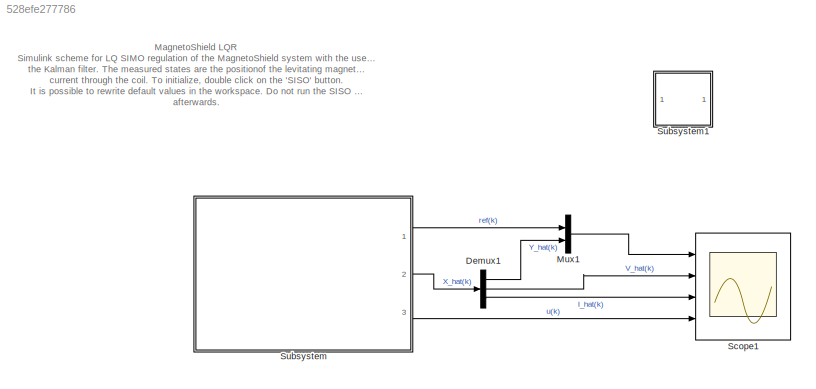
MODEL slx_528efe277786
KIND model
CONFIG AbsTol = auto
CONFIG EnableMultiTasking = on
CONFIG FixedStep = auto
CONFIG MaxStep = auto
CONFIG MinStep = auto
CONFIG RelTol = 1e-3
CONFIG SampleTimeConstraint = Unconstrained
CONFIG Solver = FixedStepAuto
CONFIG SolverName = FixedStepAuto
CONFIG StartTime = 0.0
CONFIG StopTime = 120
BLOCK [Demux] Demux1
  DisplayOption = bar
  Outputs = 3
  Ports = [1, 3]
BLOCK [Mux] Mux1
  DisplayOption = bar
  Inputs = 2
  Ports = [2, 1]
BLOCK [Scope] Scope1
  Floating = off
  NumInputPorts = 4
  Ports = [4]
  ScopeSpecificationString = Simulink.scopes.TimeScopeBlockCfg('CurrentConfiguration', extmgr.ConfigurationSet(extmgr.Configuration('Core','General UI',true),extmgr.Configuration('Core','Source UI',true),extmgr.Configuration('Sources','WiredSimulink',true,'DataLoggingVariableName','ScopeData1','DataLoggingSaveFormat','StructureWithTime'),extmgr.Configuration('Visuals','Time Domain',true,'SerializedDisplays',{struct('MinYLimRe...<+3780ch>
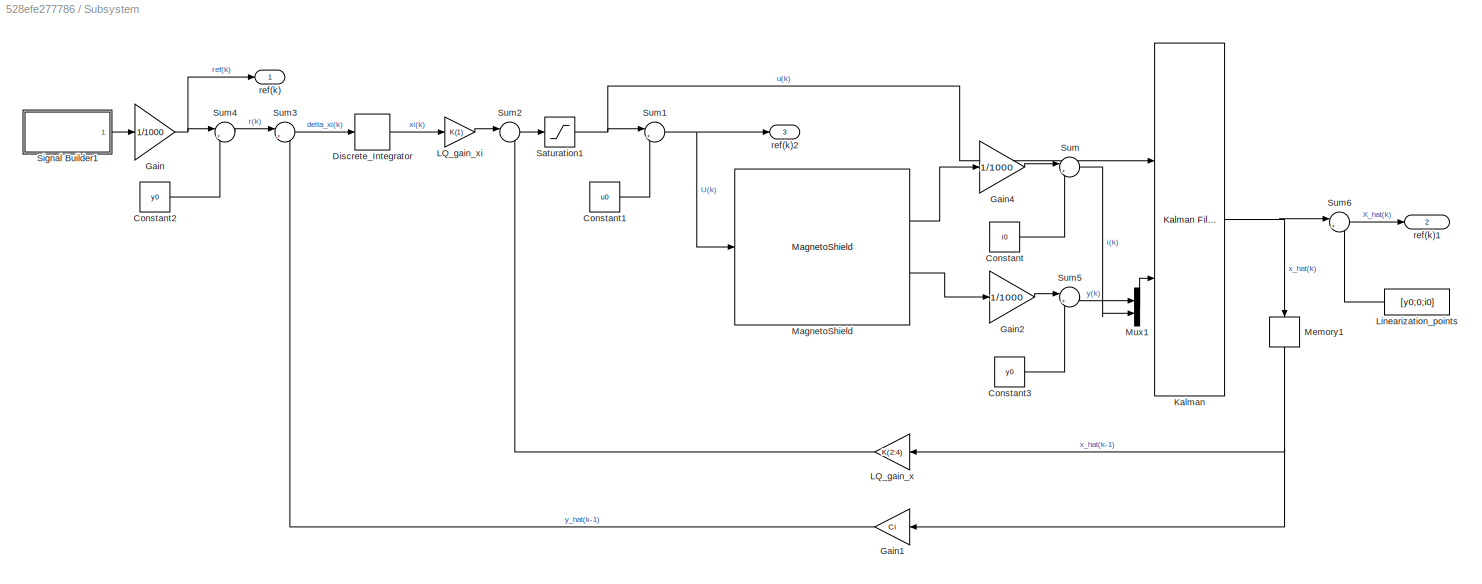
BLOCK [SubSystem] Subsystem
  Ports = [0, 3]
  RequestExecContextInheritance = off
BLOCK [Constant] Subsystem/Constant
  Value = i0
BLOCK [Constant] Subsystem/Constant1
  Value = u0
BLOCK [Constant] Subsystem/Constant2
  Value = y0
BLOCK [Constant] Subsystem/Constant3
  Value = y0
BLOCK [DiscreteIntegrator] Subsystem/Discrete_Integrator
  ICPrevOutput = DiscIntNeverNeededParam
  ICPrevScaledInput = DiscIntNeverNeededParam
  InitialConditionSetting = Auto
  IntegratorMethod = Accumulation: Forward Euler
  LimitOutput = on
  LowerSaturationLimit = -1
  Ports = [1, 1]
  SampleTime = Ts
  UpperSaturationLimit = 1
BLOCK [Gain] Subsystem/Gain
  Gain = 1/1000
  OutDataTypeStr = Inherit: Inherit via internal rule
  ParamDataTypeStr = Inherit: Inherit via internal rule
  SaturateOnIntegerOverflow = off
BLOCK [Gain] Subsystem/Gain1
  Gain = Ci
  Multiplication = Matrix(K*u)
  OutDataTypeStr = Inherit: Inherit via internal rule
  ParamDataTypeStr = Inherit: Inherit via internal rule
  SaturateOnIntegerOverflow = off
BLOCK [Gain] Subsystem/Gain2
  Gain = 1/1000
  OutDataTypeStr = Inherit: Inherit via internal rule
  ParamDataTypeStr = Inherit: Inherit via internal rule
  SaturateOnIntegerOverflow = off
BLOCK [Gain] Subsystem/Gain4
  Gain = 1/1000
  OutDataTypeStr = Inherit: Inherit via internal rule
  ParamDataTypeStr = Inherit: Inherit via internal rule
  SaturateOnIntegerOverflow = off
BLOCK [Reference] Subsystem/Kalman  REF=ctrlSharedLib/Kalman Filter
  Ports = [2, 1]
  SourceBlock = ctrlSharedLib/Kalman Filter
  SourceProductBaseCode = CT,ID
  SourceType = ctrlKalmanFilter
BLOCK [Gain] Subsystem/LQ_gain_x
  Gain = K(2:4)
  Multiplication = Matrix(K*u)
  OutDataTypeStr = Inherit: Inherit via internal rule
  ParamDataTypeStr = Inherit: Inherit via internal rule
  SaturateOnIntegerOverflow = off
BLOCK [Gain] Subsystem/LQ_gain_xi
  Gain = K(1)
  Multiplication = Matrix(K*u)
  OutDataTypeStr = Inherit: Inherit via internal rule
  ParamDataTypeStr = Inherit: Inherit via internal rule
  SaturateOnIntegerOverflow = off
BLOCK [Constant] Subsystem/Linearization_points
  Value = [y0;0;i0]
BLOCK [Reference] Subsystem/MagnetoShield  REF=MagnetoLibrary/MagnetoShield
  Ports = [1, 2]
  SourceBlock = MagnetoLibrary/MagnetoShield
  SourceProductName = AutomationShield
BLOCK [Memory] Subsystem/Memory1
  InheritSampleTime = on
BLOCK [Mux] Subsystem/Mux1
  DisplayOption = bar
  Inputs = 2
  Ports = [2, 1]
BLOCK [Saturate] Subsystem/Saturation1
  InputPortMap = u0
  LowerLimit = 0-u0
  Ports = [1, 1]
  UpperLimit = 10-u0
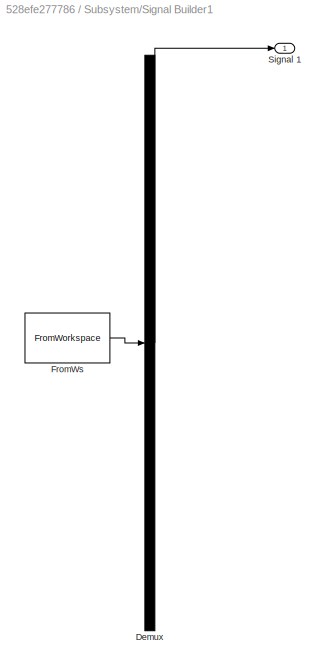
BLOCK [SubSystem] Subsystem/Signal Builder1
  ClipboardFcn = sigbuilder_block('clipboard');
  CloseFcn = sigbuilder_block('close');
  ContinueFcn = sigbuilder_block('continue');
  CopyFcn = sigbuilder_block('copy');
  DeleteFcn = sigbuilder_block('delete');
  LoadFcn = sigbuilder_block('load');
  MaskHideContents = on
  ModelCloseFcn = sigbuilder_block('modelClose');
  NameChangeFcn = sigbuilder_block('namechange');
  OpenFcn = sigbuilder_block('open',[61.8 52.2 1012.8 447.6 ]);
  PauseFcn = sigbuilder_block('pause');
  Ports = [0, 1]
  PreSaveFcn = sigbuilder_block('preSave');
  RequestExecContextInheritance = off
  StartFcn = sigbuilder_block('start');
  StopFcn = sigbuilder_block('stop');
  Tag = STV Subsys
BLOCK [Demux] Subsystem/Signal Builder1/Demux
  Outputs = 1
  Ports = [1, 1]
  Tag = STV Demux
BLOCK [FromWorkspace] Subsystem/Signal Builder1/FromWs
  SampleTime = 0
  Tag = STV FromWs
  VariableName = tuvar
  ZeroCross = on
BLOCK [Outport] Subsystem/Signal Builder1/Signal 1
  IconDisplay = Port number
  Tag = STV Outport
BLOCK [Sum] Subsystem/Sum
  IconShape = round
  InputSameDT = off
  Inputs = |+-
  OutDataTypeStr = Inherit: Inherit via internal rule
  Ports = [2, 1]
  SaturateOnIntegerOverflow = off
BLOCK [Sum] Subsystem/Sum1
  IconShape = round
  InputSameDT = off
  Inputs = |++
  OutDataTypeStr = Inherit: Inherit via internal rule
  Ports = [2, 1]
  SaturateOnIntegerOverflow = off
BLOCK [Sum] Subsystem/Sum2
  IconShape = round
  InputSameDT = off
  Inputs = |--
  OutDataTypeStr = Inherit: Inherit via internal rule
  Ports = [2, 1]
  SaturateOnIntegerOverflow = off
BLOCK [Sum] Subsystem/Sum3
  IconShape = round
  InputSameDT = off
  Inputs = |+-
  OutDataTypeStr = Inherit: Inherit via internal rule
  Ports = [2, 1]
  SaturateOnIntegerOverflow = off
BLOCK [Sum] Subsystem/Sum4
  IconShape = round
  InputSameDT = off
  Inputs = |+-
  OutDataTypeStr = Inherit: Inherit via internal rule
  Ports = [2, 1]
  SaturateOnIntegerOverflow = off
BLOCK [Sum] Subsystem/Sum5
  IconShape = round
  InputSameDT = off
  Inputs = |+-
  OutDataTypeStr = Inherit: Inherit via internal rule
  Ports = [2, 1]
  SaturateOnIntegerOverflow = off
BLOCK [Sum] Subsystem/Sum6
  IconShape = round
  InputSameDT = off
  Inputs = |++
  OutDataTypeStr = Inherit: Inherit via internal rule
  Ports = [2, 1]
  SaturateOnIntegerOverflow = off
BLOCK [Outport] Subsystem/ref(k)
  IconDisplay = Port number
BLOCK [Outport] Subsystem/ref(k)1
  IconDisplay = Signal name
  Port = 2
BLOCK [Outport] Subsystem/ref(k)2
  IconDisplay = Signal name
  Port = 3
BLOCK [SubSystem] Subsystem1
  OpenFcn = clear; close all; clc;\ncd(fileparts(which(gcs)));\nload '../../../../matlab/examples/MagnetoShield/MagnetoShield_Models_Greybox_SS';\n%% MagnetoShield - LQR simulation and control initialization for Simulink\n\norder = 'SIMO';                 % SISO - position / SIMO - position & current\nTs = 0.0015;                     % Sampling\n\n% Matrices extraction from model\nmodeld=c2d(model,Ts);           % Dis...<+1127ch>
  Ports = []
  RequestExecContextInheritance = off
ANNOTATION (root): MagnetoShield LQR Simulink scheme for LQ SIMO regulation of the MagnetoShield system with the use of the Kalman filter. The measured states are the positionof the levitating magnet and the current through the coil. To initialize, double click on the 'SISO' button. It is possible to rewrite default values in the workspace. Do not run the SISO initialization afterwards. Memory block needed to avoid ...<+23ch>
LINE Demux1:1 -> Mux1:2
LINE Demux1:2 -> Scope1:2
LINE Demux1:3 -> Scope1:3
LINE Mux1:1 -> Scope1:1
LINE Subsystem/Constant1:1 -> Subsystem/Sum1:2
LINE Subsystem/Constant2:1 -> Subsystem/Sum4:2
LINE Subsystem/Constant3:1 -> Subsystem/Sum5:2
LINE Subsystem/Constant:1 -> Subsystem/Sum:2
LINE Subsystem/Discrete_Integrator:1 -> Subsystem/LQ_gain_xi:1
LINE Subsystem/Gain1:1 -> Subsystem/Sum3:2
LINE Subsystem/Gain2:1 -> Subsystem/Sum5:1
LINE Subsystem/Gain4:1 -> Subsystem/Sum:1
NET Subsystem/Gain:1 -> Subsystem/Sum4:1, Subsystem/ref(k):1
NET Subsystem/Kalman:1 -> Subsystem/Memory1:1, Subsystem/Sum6:1
LINE Subsystem/LQ_gain_x:1 -> Subsystem/Sum2:2
LINE Subsystem/LQ_gain_xi:1 -> Subsystem/Sum2:1
LINE Subsystem/Linearization_points:1 -> Subsystem/Sum6:2
LINE Subsystem/MagnetoShield:1 -> Subsystem/Gain4:1
LINE Subsystem/MagnetoShield:2 -> Subsystem/Gain2:1
NET Subsystem/Memory1:1 -> Subsystem/Gain1:1, Subsystem/LQ_gain_x:1
LINE Subsystem/Mux1:1 -> Subsystem/Kalman:2
NET Subsystem/Saturation1:1 -> Subsystem/Kalman:1, Subsystem/Sum1:1
LINE Subsystem/Signal Builder1:1 -> Subsystem/Gain:1
NET Subsystem/Sum1:1 -> Subsystem/MagnetoShield:1, Subsystem/ref(k)2:1
LINE Subsystem/Sum2:1 -> Subsystem/Saturation1:1
LINE Subsystem/Sum3:1 -> Subsystem/Discrete_Integrator:1
LINE Subsystem/Sum4:1 -> Subsystem/Sum3:1
LINE Subsystem/Sum5:1 -> Subsystem/Mux1:1
LINE Subsystem/Sum6:1 -> Subsystem/ref(k)1:1
LINE Subsystem/Sum:1 -> Subsystem/Mux1:2
LINE Subsystem:1 -> Mux1:1
LINE Subsystem:2 -> Demux1:1
LINE Subsystem:3 -> Scope1:4
note: NET lines group one-source signal fan-out (src -> all destinations, sorted); 1:1 wires keep LINE
